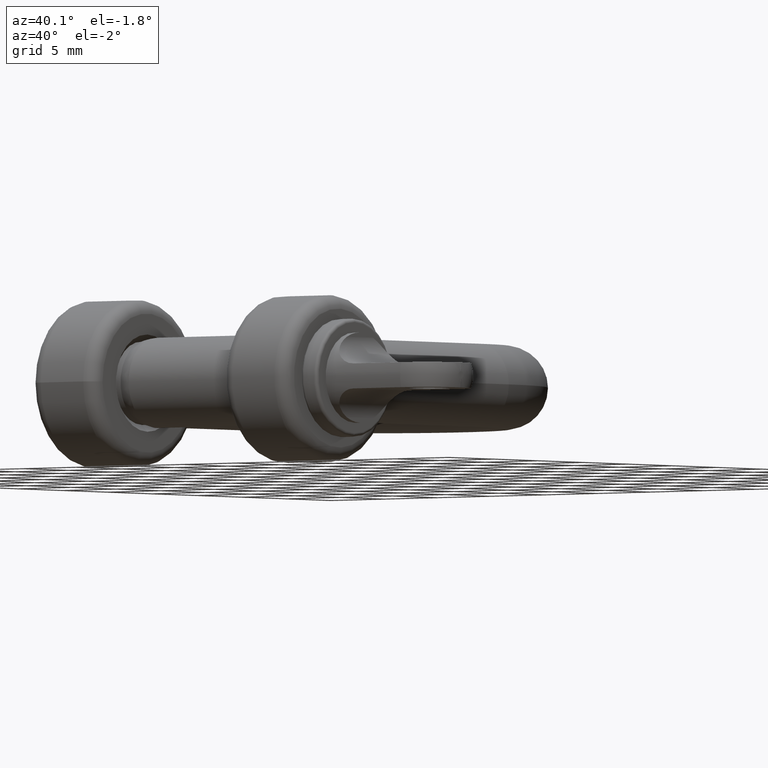
[diagram: clean part render]
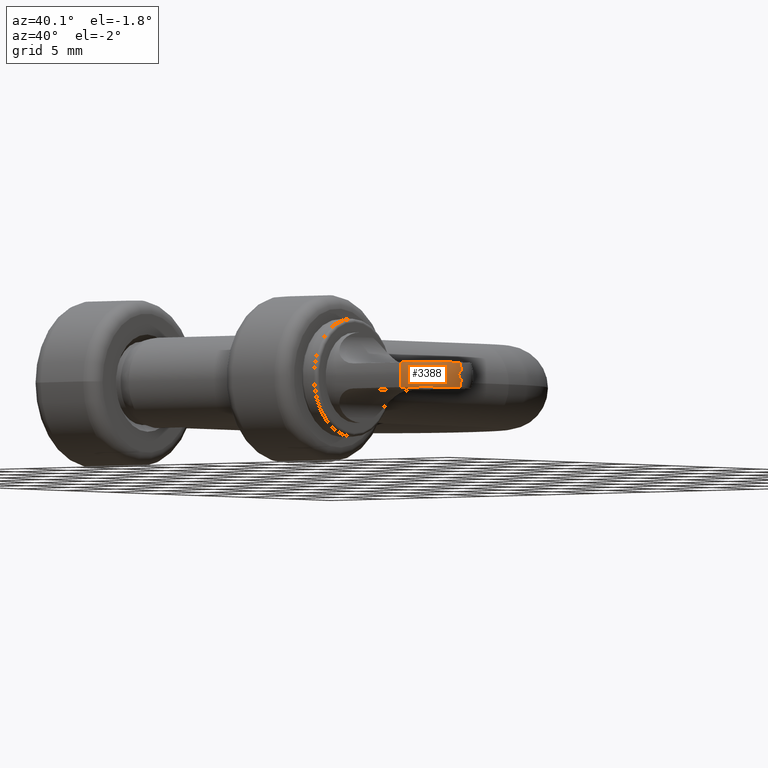
[diagram: same view with one face highlighted and labeled with its STEP entity id]
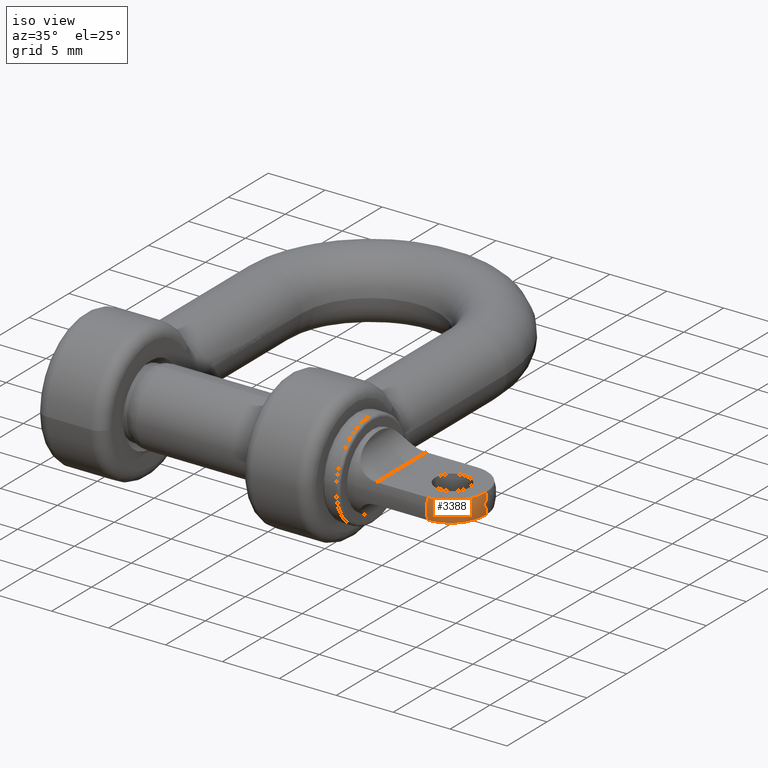
[diagram: same view with one face highlighted and labeled with its STEP entity id]
A machine part, auxiliary view. The second image highlights one B-rep face of the part: STEP entity #3388.
A second angle (iso view) of the same face is appended — the face is thin or edge-on in the first view.
In plain terms, the highlighted toroidal blend (fillet) surface has major radius 0.25 mm and minor (blend) radius 3 mm.
Its self-contained STEP definition (entity closure, byte-faithful):
#87 = CARTESIAN_POINT ( 'NONE',  ( 19.02010262533515600, -2.697774164369313200, -0.9000000000000005800 ) ) ;
#219 = ORIENTED_EDGE ( 'NONE', *, *, #10040, .F. ) ;
#417 = CARTESIAN_POINT ( 'NONE',  ( 17.89832964919845900, -3.102117624149161500, 0.8999999999999991300 ) ) ;
#453 = DIRECTION ( 'NONE',  ( 1.000000000000000000, 0.0000000000000000000, 0.0000000000000000000 ) ) ;
#551 = DIRECTION ( 'NONE',  ( 0.0000000000000000000, 1.224646799147353200E-016, 1.000000000000000000 ) ) ;
#770 = EDGE_CURVE ( 'NONE', #6689, #1374, #13125, .T. ) ;
#963 = CARTESIAN_POINT ( 'NONE',  ( 20.35219113418749600, -0.7909180142481365700, 0.8999999999999993600 ) ) ;
#966 = CARTESIAN_POINT ( 'NONE',  ( 17.69903999971238000, -3.122899293925233400, -0.9000000000000009100 ) ) ;
#1117 = CARTESIAN_POINT ( 'NONE',  ( 19.76382414787374100, -2.038702267575594400, -0.9000000000000008000 ) ) ;
#1374 = VERTEX_POINT ( 'NONE', #13049 ) ;
#1680 = AXIS2_PLACEMENT_3D ( 'NONE', #12011, #2129, #11902 ) ;
#1724 = CARTESIAN_POINT ( 'NONE',  ( 20.08563480829434800, -1.540543813660278300, 0.8999999999999992500 ) ) ;
#2000 = AXIS2_PLACEMENT_3D ( 'NONE', #5502, #14278, #12018 ) ;
#2059 = CARTESIAN_POINT ( 'NONE',  ( 20.08534805608954700, -1.540756549191804500, -0.9000000000000008000 ) ) ;
#2129 = DIRECTION ( 'NONE',  ( 0.0000000000000000000, -1.000000000000000000, 0.0000000000000000000 ) ) ;
#2267 = B_SPLINE_CURVE_WITH_KNOTS ( 'NONE', 3,
 ( #8704, #3279, #5430, #8805, #4341, #13338, #2059, #3175, #1117, #5582, #8860, #87, #9985, #4448, #12194, #13187, #966, #6642 ),
 .UNSPECIFIED., .F., .F.,
 ( 4, 2, 2, 2, 2, 2, 2, 2, 4 ),
 ( 0.004753900977743030800, 0.005348543255571456200, 0.005943185533399881700, 0.006537827811228307100, 0.007132470089056732600, 0.007727112366885158100, 0.008321754644713583500, 0.008916396922542008100, 0.009511039200370434400 ),
 .UNSPECIFIED. ) ;
#2637 = DIRECTION ( 'NONE',  ( -1.000000000000000000, -0.0000000000000000000, -0.0000000000000000000 ) ) ;
#2830 = CARTESIAN_POINT ( 'NONE',  ( 20.42873692912149500, 1.070839780548049200E-015, 0.8999999999999991300 ) ) ;
#2963 = CARTESIAN_POINT ( 'NONE',  ( 17.49999999999999600, 3.061616997868386100E-017, 0.2500000000000002200 ) ) ;
#3175 = CARTESIAN_POINT ( 'NONE',  ( 19.88183763029082800, -1.880155184505705600, -0.9000000000000005800 ) ) ;
#3279 = CARTESIAN_POINT ( 'NONE',  ( 20.42873692912150900, -0.1996916953257355000, -0.9000000000000006900 ) ) ;
#3388 = ADVANCED_FACE ( 'NONE', ( #13767 ), #8358, .T. ) ;
#3516 = CARTESIAN_POINT ( 'NONE',  ( 17.49999999999999600, -3.122899293925438100, 0.9000000000000008000 ) ) ;
#3742 = DIRECTION ( 'NONE',  ( 0.0000000000000000000, 0.0000000000000000000, -1.000000000000000000 ) ) ;
#3967 = EDGE_CURVE ( 'NONE', #11988, #9850, #2267, .T. ) ;
#3987 = ORIENTED_EDGE ( 'NONE', *, *, #13525, .T. ) ;
#3994 = CARTESIAN_POINT ( 'NONE',  ( 18.47902050139315800, -2.958868519396916000, 0.8999999999999991300 ) ) ;
#4245 = CARTESIAN_POINT ( 'NONE',  ( 20.30324755128823000, -0.9869885481549373100, 0.8999999999999994700 ) ) ;
#4341 = CARTESIAN_POINT ( 'NONE',  ( 20.30463077247575000, -0.9822432422754339100, -0.9000000000000008000 ) ) ;
#4448 = CARTESIAN_POINT ( 'NONE',  ( 18.47900128666516700, -2.959012030714349300, -0.9000000000000005800 ) ) ;
#4604 = CARTESIAN_POINT ( 'NONE',  ( 20.49999999999999600, 0.0000000000000000000, -0.2500000000000002200 ) ) ;
#4737 = CARTESIAN_POINT ( 'NONE',  ( 20.49999999999999600, 0.0000000000000000000, 0.0000000000000000000 ) ) ;
#4790 = CARTESIAN_POINT ( 'NONE',  ( 17.70093590549836200, -3.122899293925439400, 0.8999999999999993600 ) ) ;
#5021 = CARTESIAN_POINT ( 'NONE',  ( 20.49999999999999600, 2.143131898507867600E-016, 0.2500000000000002200 ) ) ;
#5380 = CARTESIAN_POINT ( 'NONE',  ( 19.87946552443060400, -1.883843007867178800, 0.8999999999999992500 ) ) ;
#5430 = CARTESIAN_POINT ( 'NONE',  ( 20.41414879966644600, -0.3999910388771201800, -0.9000000000000009100 ) ) ;
#5436 = EDGE_CURVE ( 'NONE', #9850, #6689, #12001, .T. ) ;
#5502 = CARTESIAN_POINT ( 'NONE',  ( 17.49999999999999600, 0.0000000000000000000, 0.0000000000000000000 ) ) ;
#5582 = CARTESIAN_POINT ( 'NONE',  ( 19.49399578169875000, -2.332610623152128000, -0.9000000000000005800 ) ) ;
#6114 = CARTESIAN_POINT ( 'NONE',  ( 19.75951081122858700, -2.043937720358621300, 0.8999999999999990200 ) ) ;
#6454 = CARTESIAN_POINT ( 'NONE',  ( 20.42873692912150200, -0.1995558046097424000, 0.8999999999999991300 ) ) ;
#6642 = CARTESIAN_POINT ( 'NONE',  ( 17.50000000000296300, -3.122899293925438100, -0.9000000000000008000 ) ) ;
#6689 = VERTEX_POINT ( 'NONE', #3516 ) ;
#8053 = CARTESIAN_POINT ( 'NONE',  ( 17.49999999999999600, -3.122899293925438100, 0.9000000000000008000 ) ) ;
#8324 = EDGE_LOOP ( 'NONE', ( #219, #13376, #9142, #12342, #3987, #13095 ) ) ;
#8347 = CARTESIAN_POINT ( 'NONE',  ( 20.41444891713745600, -0.3977480222959381400, 0.8999999999999993600 ) ) ;
#8358 = TOROIDAL_SURFACE ( 'NONE', #2000, 0.2500000000000002200, 3.000000000000000000 ) ;
#8393 = CARTESIAN_POINT ( 'NONE',  ( 19.49097443554504100, -2.335349523371138300, 0.8999999999999992500 ) ) ;
#8433 = DIRECTION ( 'NONE',  ( 0.0000000000000000000, 1.000000000000000000, -1.224646799147353200E-016 ) ) ;
#8443 = CARTESIAN_POINT ( 'NONE',  ( 18.28631856358628500, -3.020667428111748300, 0.8999999999999993600 ) ) ;
#8669 = VERTEX_POINT ( 'NONE', #4604 ) ;
#8704 = CARTESIAN_POINT ( 'NONE',  ( 20.42873692912149500, -9.606215699158411000E-016, -0.9000000000000008000 ) ) ;
#8805 = CARTESIAN_POINT ( 'NONE',  ( 20.35219222882581400, -0.7905617012961322400, -0.9000000000000006900 ) ) ;
#8860 = CARTESIAN_POINT ( 'NONE',  ( 19.34260243077059000, -2.466656187252287900, -0.9000000000000008000 ) ) ;
#9142 = ORIENTED_EDGE ( 'NONE', *, *, #5436, .F. ) ;
#9334 = CIRCLE ( 'NONE', #12167, 0.2500000000000002200 ) ;
#9446 = CARTESIAN_POINT ( 'NONE',  ( 20.16992333782428700, -1.360975815612777800, 0.8999999999999991300 ) ) ;
#9484 = CARTESIAN_POINT ( 'NONE',  ( 18.84320810621942900, -2.798703592907554800, 0.8999999999999993600 ) ) ;
#9850 = VERTEX_POINT ( 'NONE', #10029 ) ;
#9985 = CARTESIAN_POINT ( 'NONE',  ( 18.84649665700320800, -2.797121063779685700, -0.9000000000000008000 ) ) ;
#10029 = CARTESIAN_POINT ( 'NONE',  ( 17.50000000000296300, -3.122899293925438100, -0.9000000000000008000 ) ) ;
#10040 = EDGE_CURVE ( 'NONE', #1374, #12985, #11591, .T. ) ;
#10341 = DIRECTION ( 'NONE',  ( 0.0000000000000000000, 0.0000000000000000000, -1.000000000000000000 ) ) ;
#10881 = CARTESIAN_POINT ( 'NONE',  ( 19.01540025167693700, -2.700754094000324300, 0.8999999999999992500 ) ) ;
#11559 = AXIS2_PLACEMENT_3D ( 'NONE', #13661, #2637, #10341 ) ;
#11591 = CIRCLE ( 'NONE', #13101, 3.000000000000000000 ) ;
#11609 = CARTESIAN_POINT ( 'NONE',  ( 20.42873692912149500, -9.606215699158411000E-016, -0.9000000000000008000 ) ) ;
#11744 = CIRCLE ( 'NONE', #1680, 3.000000000000000000 ) ;
#11902 = DIRECTION ( 'NONE',  ( 0.0000000000000000000, 0.0000000000000000000, -1.000000000000000000 ) ) ;
#11988 = VERTEX_POINT ( 'NONE', #11609 ) ;
#12001 = CIRCLE ( 'NONE', #11559, 3.250000000000000400 ) ;
#12011 = CARTESIAN_POINT ( 'NONE',  ( 17.49999999999999600, 0.0000000000000000000, -0.2500000000000002200 ) ) ;
#12018 = DIRECTION ( 'NONE',  ( 0.0000000000000000000, 0.0000000000000000000, -1.000000000000000000 ) ) ;
#12043 = CARTESIAN_POINT ( 'NONE',  ( 19.33989984928704000, -2.468974179889662900, 0.8999999999999992500 ) ) ;
#12167 = AXIS2_PLACEMENT_3D ( 'NONE', #4737, #453, #3742 ) ;
#12194 = CARTESIAN_POINT ( 'NONE',  ( 18.28982636102000500, -3.019709237478637800, -0.9000000000000008000 ) ) ;
#12342 = ORIENTED_EDGE ( 'NONE', *, *, #3967, .F. ) ;
#12985 = VERTEX_POINT ( 'NONE', #5021 ) ;
#13049 = CARTESIAN_POINT ( 'NONE',  ( 20.42873692912149500, 1.070839780548049200E-015, 0.8999999999999991300 ) ) ;
#13095 = ORIENTED_EDGE ( 'NONE', *, *, #14293, .F. ) ;
#13101 = AXIS2_PLACEMENT_3D ( 'NONE', #2963, #8433, #551 ) ;
#13125 = B_SPLINE_CURVE_WITH_KNOTS ( 'NONE', 3,
 ( #8053, #4790, #417, #8443, #3994, #9484, #10881, #12043, #8393, #6114, #5380, #1724, #9446, #4245, #963, #8347, #6454, #2830 ),
 .UNSPECIFIED., .F., .F.,
 ( 4, 2, 2, 2, 2, 2, 2, 2, 4 ),
 ( 0.0000000000000000000, 0.0005942376222178786300, 0.001188475244435757300, 0.001782712866653636100, 0.002376950488871514500, 0.002971188111089392900, 0.003565425733307272200, 0.004159663355525150200, 0.004753900977743028200 ),
 .UNSPECIFIED. ) ;
#13187 = CARTESIAN_POINT ( 'NONE',  ( 17.90093862260772500, -3.101788264993122100, -0.9000000000000009100 ) ) ;
#13338 = CARTESIAN_POINT ( 'NONE',  ( 20.17151742247133900, -1.357350390107916500, -0.9000000000000005800 ) ) ;
#13376 = ORIENTED_EDGE ( 'NONE', *, *, #770, .F. ) ;
#13525 = EDGE_CURVE ( 'NONE', #11988, #8669, #11744, .T. ) ;
#13661 = CARTESIAN_POINT ( 'NONE',  ( 17.49999999999999600, 0.0000000000000000000, 0.0000000000000000000 ) ) ;
#13767 = FACE_OUTER_BOUND ( 'NONE', #8324, .T. ) ;
#14278 = DIRECTION ( 'NONE',  ( 1.000000000000000000, 0.0000000000000000000, 0.0000000000000000000 ) ) ;
#14293 = EDGE_CURVE ( 'NONE', #12985, #8669, #9334, .T. ) ;